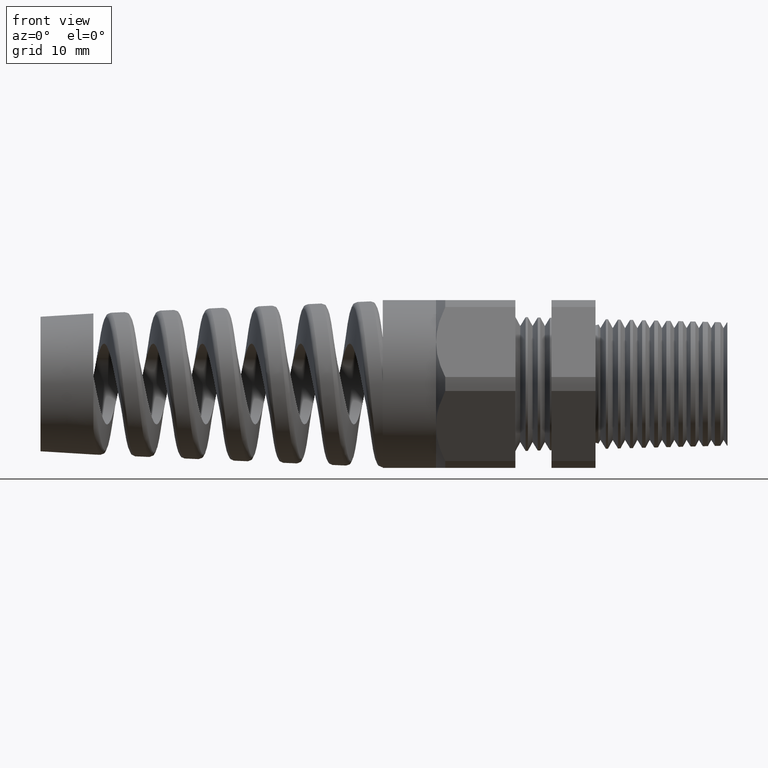
[diagram: clean part render]
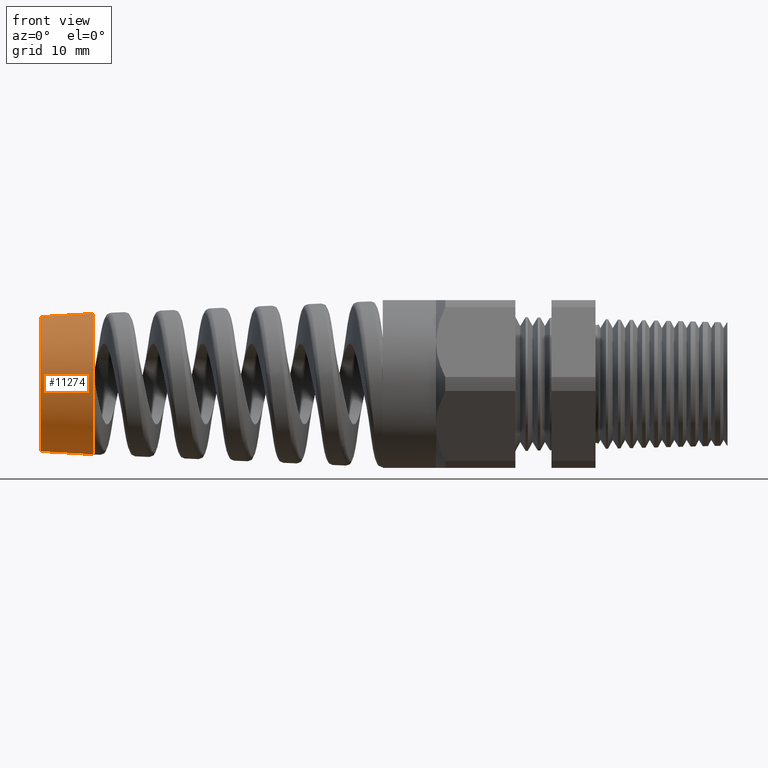
[diagram: same view with one face highlighted and labeled with its STEP entity id]
A machine part, front view. The second image highlights one B-rep face of the part: STEP entity #11274.
In plain terms, the highlighted conical surface has half-angle 3.5 deg.
Its self-contained STEP definition (entity closure, byte-faithful):
#1639 = CARTESIAN_POINT ( 'NONE',  ( -2.790000472440945100, -3.769408208166195900E-017, -0.3005716068234703400 ) ) ;
#1640 = CARTESIAN_POINT ( 'NONE',  ( -2.790000472440945100, 0.0000000000000000000, 0.3005716068234703400 ) ) ;
#1641 = DIRECTION ( 'NONE',  ( 0.9981347984218669200, -7.476289853398327700E-018, -0.06104853953485701200 ) ) ;
#1642 = VECTOR ( 'NONE', #1641, 39.37007874015748900 ) ;
#1643 = CARTESIAN_POINT ( 'NONE',  ( -2.553780000000000200, -3.857875854222994900E-017, -0.3150194698511438700 ) ) ;
#1644 = LINE ( 'NONE', #1643, #1642 ) ;
#1645 = DIRECTION ( 'NONE',  ( 0.0000000000000000000, 0.0000000000000000000, 1.000000000000000000 ) ) ;
#1646 = DIRECTION ( 'NONE',  ( -1.000000000000000000, 0.0000000000000000000, 0.0000000000000000000 ) ) ;
#1647 = CARTESIAN_POINT ( 'NONE',  ( -2.553780000000000200, 0.0000000000000000000, 0.0000000000000000000 ) ) ;
#1648 = AXIS2_PLACEMENT_3D ( 'NONE', #1647, #1646, #1645 ) ;
#1649 = CIRCLE ( 'NONE', #1648, 0.3150194698511438700 ) ;
#1650 = CARTESIAN_POINT ( 'NONE',  ( -2.553780000000000200, 0.0000000000000000000, 0.3150194698511438700 ) ) ;
#1657 = DIRECTION ( 'NONE',  ( 0.9981347984218669200, 0.0000000000000000000, 0.06104853953485701200 ) ) ;
#1658 = VECTOR ( 'NONE', #1657, 39.37007874015748900 ) ;
#1659 = CARTESIAN_POINT ( 'NONE',  ( -2.553780000000000200, 0.0000000000000000000, 0.3150194698511438700 ) ) ;
#1660 = LINE ( 'NONE', #1659, #1658 ) ;
#1689 = DIRECTION ( 'NONE',  ( 0.0000000000000000000, 0.0000000000000000000, 1.000000000000000000 ) ) ;
#1690 = DIRECTION ( 'NONE',  ( -1.000000000000000000, 0.0000000000000000000, 0.0000000000000000000 ) ) ;
#1691 = CARTESIAN_POINT ( 'NONE',  ( -2.790000472440945100, 0.0000000000000000000, 0.0000000000000000000 ) ) ;
#1692 = AXIS2_PLACEMENT_3D ( 'NONE', #1691, #1690, #1689 ) ;
#1693 = CIRCLE ( 'NONE', #1692, 0.3005716068234703400 ) ;
#1724 = DIRECTION ( 'NONE',  ( 0.0000000000000000000, 0.0000000000000000000, 1.000000000000000000 ) ) ;
#1725 = DIRECTION ( 'NONE',  ( 1.000000000000000000, 0.0000000000000000000, 0.0000000000000000000 ) ) ;
#1726 = CARTESIAN_POINT ( 'NONE',  ( -2.553780000000000200, 0.0000000000000000000, 0.0000000000000000000 ) ) ;
#1727 = AXIS2_PLACEMENT_3D ( 'NONE', #1726, #1725, #1724 ) ;
#1728 = CONICAL_SURFACE ( 'NONE', #1727, 0.3150194698511438700, 0.06108652381980166800 ) ;
#1729 = FACE_OUTER_BOUND ( 'NONE', #11229, .T. ) ;
#2170 = CARTESIAN_POINT ( 'NONE',  ( -2.553780000000000200, -0.2443225117211892900, -0.1988561707655688000 ) ) ;
#4058 = EDGE_CURVE ( 'NONE', #11489, #9189, #6805, .T. ) ;
#6802 = DIRECTION ( 'NONE',  ( 0.0000000000000000000, 0.0000000000000000000, -1.000000000000000000 ) ) ;
#6803 = DIRECTION ( 'NONE',  ( 1.000000000000000000, 0.0000000000000000000, 0.0000000000000000000 ) ) ;
#6804 = AXIS2_PLACEMENT_3D ( 'NONE', #6810, #6803, #6802 ) ;
#6805 = CIRCLE ( 'NONE', #6804, 0.3150194698511439900 ) ;
#6810 = CARTESIAN_POINT ( 'NONE',  ( -2.553780000000000200, 0.0000000000000000000, 0.0000000000000000000 ) ) ;
#9189 = VERTEX_POINT ( 'NONE', #10204 ) ;
#10204 = CARTESIAN_POINT ( 'NONE',  ( -2.553780000000000200, -3.857875854222994900E-017, -0.3150194698511438700 ) ) ;
#11229 = EDGE_LOOP ( 'NONE', ( #11257, #11247, #11253, #11252, #11240 ) ) ;
#11239 = EDGE_CURVE ( 'NONE', #11246, #11242, #1660, .T. ) ;
#11240 = ORIENTED_EDGE ( 'NONE', *, *, #11239, .F. ) ;
#11242 = VERTEX_POINT ( 'NONE', #1650 ) ;
#11243 = EDGE_CURVE ( 'NONE', #11489, #11242, #1649, .T. ) ;
#11244 = EDGE_CURVE ( 'NONE', #11250, #9189, #1644, .T. ) ;
#11246 = VERTEX_POINT ( 'NONE', #1640 ) ;
#11247 = ORIENTED_EDGE ( 'NONE', *, *, #11244, .T. ) ;
#11250 = VERTEX_POINT ( 'NONE', #1639 ) ;
#11252 = ORIENTED_EDGE ( 'NONE', *, *, #11243, .T. ) ;
#11253 = ORIENTED_EDGE ( 'NONE', *, *, #4058, .F. ) ;
#11256 = EDGE_CURVE ( 'NONE', #11250, #11246, #1693, .T. ) ;
#11257 = ORIENTED_EDGE ( 'NONE', *, *, #11256, .F. ) ;
#11274 = ADVANCED_FACE ( 'NONE', ( #1729 ), #1728, .T. ) ;
#11489 = VERTEX_POINT ( 'NONE', #2170 ) ;